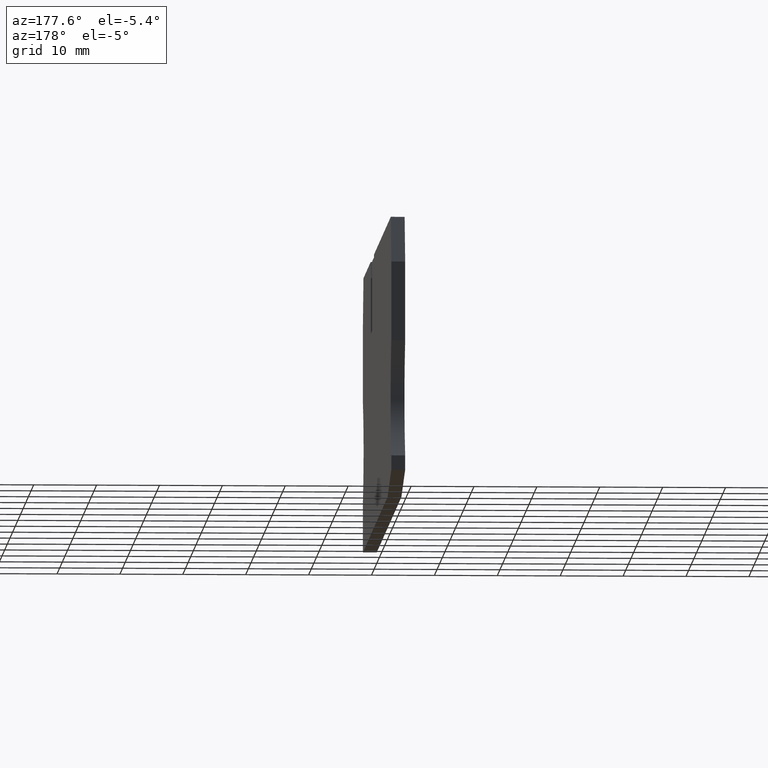
[diagram: clean part render]
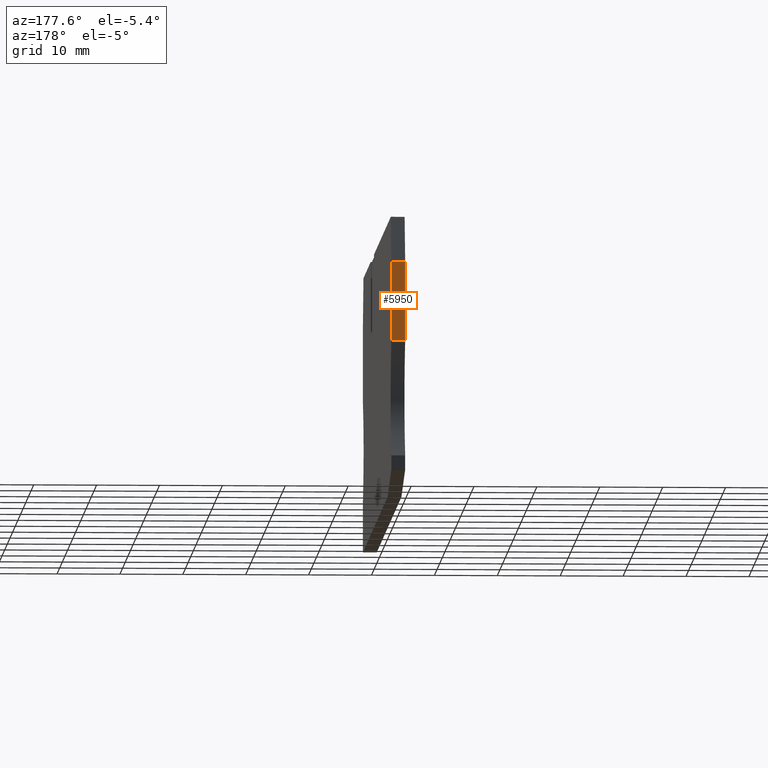
[diagram: same view with one face highlighted and labeled with its STEP entity id]
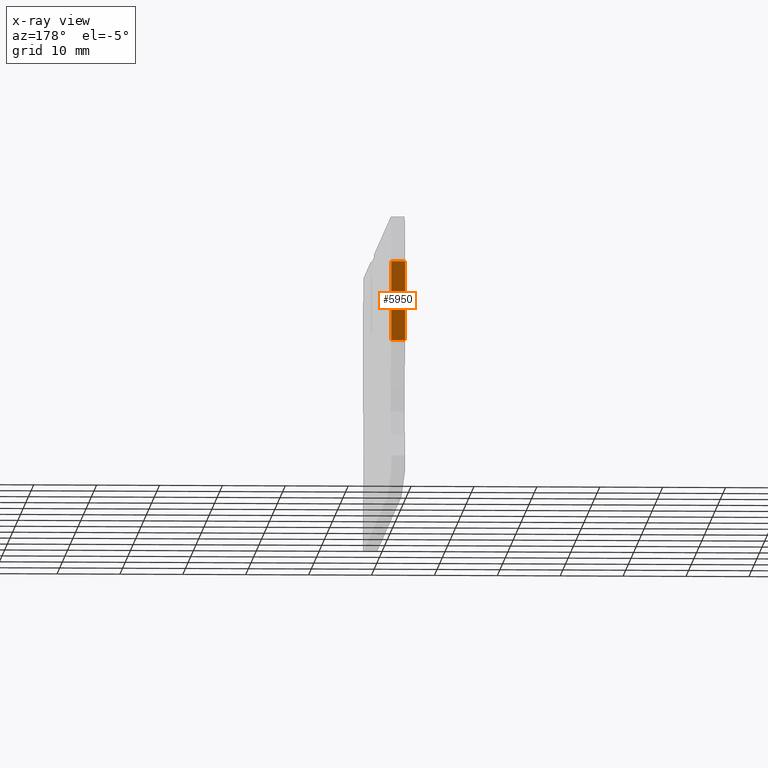
[diagram: x-ray of the same camera — body ghosted, the highlighted face saturated]
A machine part, auxiliary view. The second image highlights one B-rep face of the part: STEP entity #5950.
The next image is the same camera in x-ray: the body ghosted, the highlighted face saturated — about 0% of this face is hidden behind the body in this view.
In plain terms, the highlighted planar face has unit normal (0, 1, 0).
Its self-contained STEP definition (entity closure, byte-faithful):
#3100=CARTESIAN_POINT('',(65.15,21.9231577655584,9.8));
#3110=DIRECTION('',(0.,-1.,0.));
#3120=VECTOR('',#3110,1.);
#3130=LINE('',#3100,#3120);
#3140=CARTESIAN_POINT('',(65.15,36.4298018960901,9.8));
#3150=VERTEX_POINT('',#3140);
#3160=CARTESIAN_POINT('',(65.15,23.8929320676267,9.8));
#3170=VERTEX_POINT('',#3160);
#3180=EDGE_CURVE('',#3150,#3170,#3130,.T.);
#5650=CARTESIAN_POINT('',(65.15,36.3639756472962,9.8));
#5660=DIRECTION('',(1.,0.,0.));
#5670=DIRECTION('',(0.,-1.,0.));
#5680=AXIS2_PLACEMENT_3D('',#5650,#5660,#5670);
#5690=PLANE('',#5680);
#5700=CARTESIAN_POINT('',(65.15,23.8929320676267,9.8));
#5710=DIRECTION('',(0.,0.,-1.));
#5720=VECTOR('',#5710,1.);
#5730=LINE('',#5700,#5720);
#5740=CARTESIAN_POINT('',(65.15,23.8929320676267,11.999999999997));
#5750=VERTEX_POINT('',#5740);
#5760=EDGE_CURVE('',#5750,#3170,#5730,.T.);
#5770=ORIENTED_EDGE('',*,*,#5760,.T.);
#5780=CARTESIAN_POINT('',(65.15,21.9231577655584,11.9999999999973));
#5790=DIRECTION('',(0.,1.,3.03161873061274E-15));
#5800=VECTOR('',#5790,1.);
#5810=LINE('',#5780,#5800);
#5820=CARTESIAN_POINT('',(65.15,36.42980189609,11.9999999999974));
#5830=VERTEX_POINT('',#5820);
#5840=EDGE_CURVE('',#5750,#5830,#5810,.T.);
#5850=ORIENTED_EDGE('',*,*,#5840,.F.);
#5860=CARTESIAN_POINT('',(65.15,36.42980189609,12.));
#5870=DIRECTION('',(0.,0.,1.));
#5880=VECTOR('',#5870,1.);
#5890=LINE('',#5860,#5880);
#5900=EDGE_CURVE('',#3150,#5830,#5890,.T.);
#5910=ORIENTED_EDGE('',*,*,#5900,.T.);
#5920=ORIENTED_EDGE('',*,*,#3180,.F.);
#5930=EDGE_LOOP('',(#5920,#5910,#5850,#5770));
#5940=FACE_OUTER_BOUND('',#5930,.T.);
#5950=ADVANCED_FACE('',(#5940),#5690,.T.);